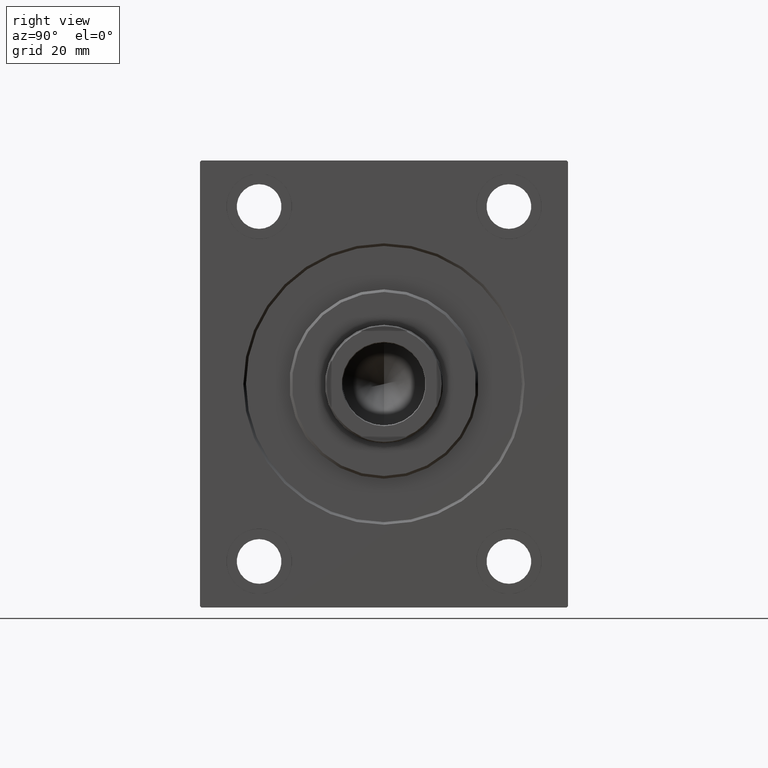
[diagram: clean part render]
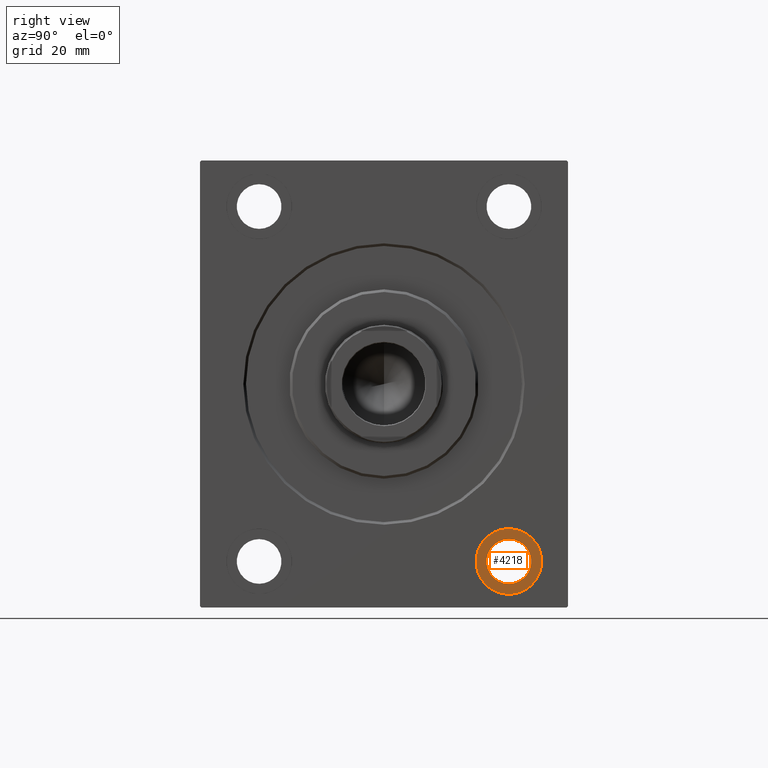
[diagram: same view with one face highlighted and labeled with its STEP entity id]
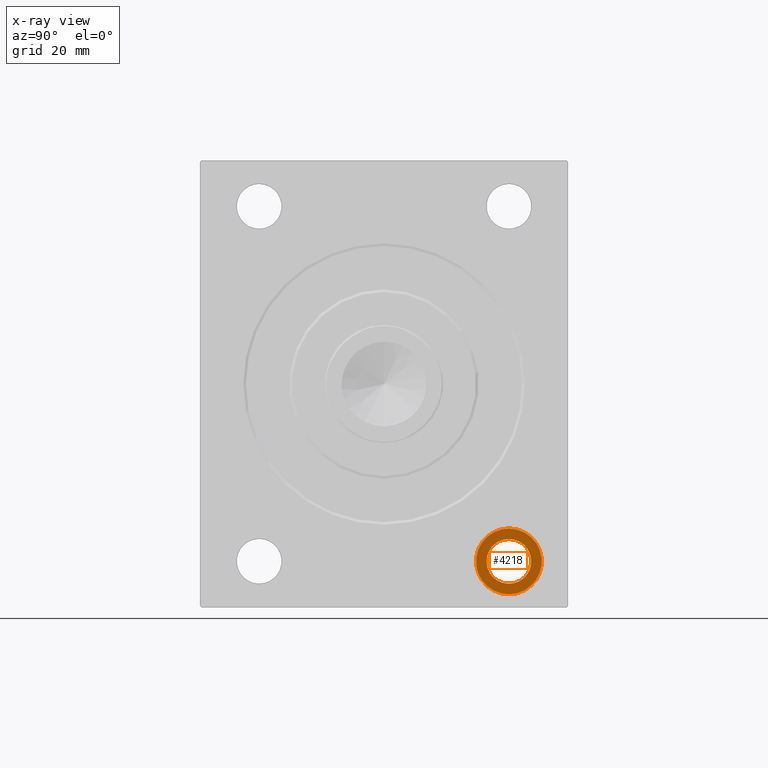
[diagram: x-ray of the same camera — body ghosted, the highlighted face saturated]
A machine part, right view. The second image highlights one B-rep face of the part: STEP entity #4218.
The next image is the same camera in x-ray: the body ghosted, the highlighted face saturated — about 0% of this face is hidden behind the body in this view.
In plain terms, the highlighted planar face has unit normal (1, -0, 0).
Its self-contained STEP definition (entity closure, byte-faithful):
#176 = AXIS2_PLACEMENT_3D ( 'NONE', #18794, #32503, #1735 ) ;
#1440 = AXIS2_PLACEMENT_3D ( 'NONE', #21687, #15157, #38305 ) ;
#1735 = DIRECTION ( 'NONE',  ( 0.000000000000000000, 0.000000000000000000, 1.000000000000000000 ) ) ;
#2811 = CARTESIAN_POINT ( 'NONE',  ( 17.00000000000001421, 47.50000000000000711, 75.99999999999998579 ) ) ;
#4218 = ADVANCED_FACE ( 'NONE', ( #17878, #21464 ), #32017, .T. ) ;
#6423 = DIRECTION ( 'NONE',  ( 0.000000000000000000, 0.000000000000000000, 1.000000000000000000 ) ) ;
#7477 = AXIS2_PLACEMENT_3D ( 'NONE', #32786, #23486, #6423 ) ;
#7874 = VERTEX_POINT ( 'NONE', #2811 ) ;
#10583 = EDGE_LOOP ( 'NONE', ( #35783, #25391 ) ) ;
#11078 = CARTESIAN_POINT ( 'NONE',  ( 17.00000000000000000, 47.50000000000000711, 79.99999999999998579 ) ) ;
#13704 = CARTESIAN_POINT ( 'NONE',  ( 17.00000000000000000, 47.50000000000000711, 67.49999999999997158 ) ) ;
#15062 = AXIS2_PLACEMENT_3D ( 'NONE', #39901, #42615, #39457 ) ;
#15157 = DIRECTION ( 'NONE',  ( -1.000000000000000000, 0.000000000000000000, 0.000000000000000000 ) ) ;
#15948 = CIRCLE ( 'NONE', #176, 8.500000000000007105 ) ;
#17654 = VERTEX_POINT ( 'NONE', #11078 ) ;
#17878 = FACE_BOUND ( 'NONE', #10583, .T. ) ;
#18352 = CARTESIAN_POINT ( 'NONE',  ( 17.00000000000001421, 47.50000000000000711, 58.99999999999997158 ) ) ;
#18794 = CARTESIAN_POINT ( 'NONE',  ( 17.00000000000001421, 47.50000000000000711, 67.49999999999997158 ) ) ;
#19713 = EDGE_CURVE ( 'NONE', #34410, #7874, #39705, .T. ) ;
#21084 = ORIENTED_EDGE ( 'NONE', *, *, #32860, .T. ) ;
#21464 = FACE_OUTER_BOUND ( 'NONE', #38428, .T. ) ;
#21687 = CARTESIAN_POINT ( 'NONE',  ( 17.00000000000000000, 47.50000000000000711, 67.49999999999997158 ) ) ;
#22939 = CIRCLE ( 'NONE', #15062, 12.50000000000001066 ) ;
#23486 = DIRECTION ( 'NONE',  ( -1.000000000000000000, 0.000000000000000000, 0.000000000000000000 ) ) ;
#25391 = ORIENTED_EDGE ( 'NONE', *, *, #19713, .F. ) ;
#30265 = CIRCLE ( 'NONE', #34620, 12.50000000000001066 ) ;
#32017 = PLANE ( 'NONE',  #1440 ) ;
#32503 = DIRECTION ( 'NONE',  ( -1.000000000000000000, 0.000000000000000000, 0.000000000000000000 ) ) ;
#32786 = CARTESIAN_POINT ( 'NONE',  ( 17.00000000000001421, 47.50000000000000711, 67.49999999999997158 ) ) ;
#32860 = EDGE_CURVE ( 'NONE', #17654, #41118, #22939, .T. ) ;
#34410 = VERTEX_POINT ( 'NONE', #18352 ) ;
#34595 = DIRECTION ( 'NONE',  ( -1.000000000000000000, 0.000000000000000000, 0.000000000000000000 ) ) ;
#34620 = AXIS2_PLACEMENT_3D ( 'NONE', #13704, #34595, #40643 ) ;
#35783 = ORIENTED_EDGE ( 'NONE', *, *, #43545, .F. ) ;
#38305 = DIRECTION ( 'NONE',  ( 0.000000000000000000, 0.000000000000000000, 1.000000000000000000 ) ) ;
#38428 = EDGE_LOOP ( 'NONE', ( #21084, #38798 ) ) ;
#38798 = ORIENTED_EDGE ( 'NONE', *, *, #43030, .T. ) ;
#39457 = DIRECTION ( 'NONE',  ( 0.000000000000000000, 0.000000000000000000, 1.000000000000000000 ) ) ;
#39705 = CIRCLE ( 'NONE', #7477, 8.500000000000007105 ) ;
#39901 = CARTESIAN_POINT ( 'NONE',  ( 17.00000000000000000, 47.50000000000000711, 67.49999999999997158 ) ) ;
#39962 = CARTESIAN_POINT ( 'NONE',  ( 17.00000000000000000, 47.50000000000000711, 54.99999999999997158 ) ) ;
#40643 = DIRECTION ( 'NONE',  ( 0.000000000000000000, 0.000000000000000000, 1.000000000000000000 ) ) ;
#41118 = VERTEX_POINT ( 'NONE', #39962 ) ;
#42615 = DIRECTION ( 'NONE',  ( -1.000000000000000000, 0.000000000000000000, 0.000000000000000000 ) ) ;
#43030 = EDGE_CURVE ( 'NONE', #41118, #17654, #30265, .T. ) ;
#43545 = EDGE_CURVE ( 'NONE', #7874, #34410, #15948, .T. ) ;